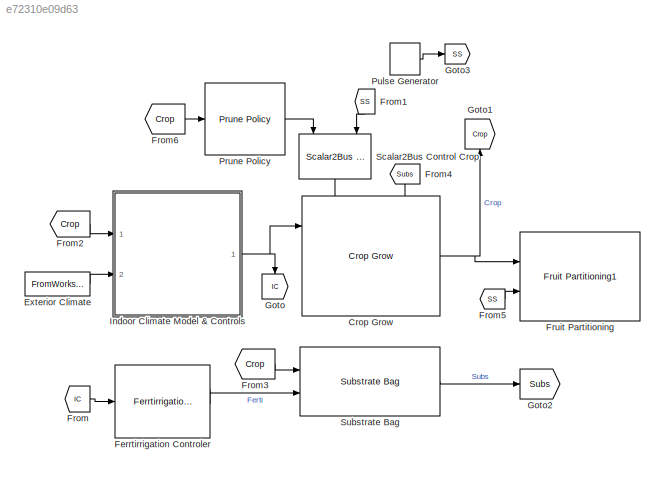
MODEL slx_e72310e09d63
KIND model
CONFIG AbsTol = auto
CONFIG EnableMultiTasking = off
CONFIG FixedStep = auto
CONFIG MaxStep = auto
CONFIG MinStep = auto
CONFIG RelTol = 1e-3
CONFIG SampleTimeConstraint = Unconstrained
CONFIG SolverName = VariableStepAuto
CONFIG StartTime = 0.0
CONFIG StopTime = 100
BLOCK [Reference] Crop Grow  REF=HORTISIM/Horticulture/Models/Crop Grow
  Ports = [3, 1]
  SourceBlock = HORTISIM/Horticulture/Models/Crop Grow
  SourceProductName = Horti Simulator
BLOCK [FromWorkspace] Exterior Climate
  VariableName = climate
BLOCK [Reference] Ferrtirrigation Controler  REF=HORTISIM/Horticulture/Controls/Ferrtirrigation
 Controler
  Ports = [1, 2]
  SourceBlock = HORTISIM/Horticulture/Controls/Ferrtirrigation\n Controler
  SourceProductName = Horti Simulator
BLOCK [From] From
  GotoTag = IC
BLOCK [From] From1
  GotoTag = SS
  NameLocation = left
BLOCK [From] From2
  GotoTag = Crop
BLOCK [From] From3
  GotoTag = Crop
BLOCK [From] From4
  GotoTag = Subs
  NameLocation = left
BLOCK [From] From5
  GotoTag = SS
BLOCK [From] From6
  GotoTag = Crop
BLOCK [Reference] Fruit Partitioning  REF=HORTISIM/Horticulture/Models/Fruit Partitioning1
  Ports = [2, 1]
  SourceBlock = HORTISIM/Horticulture/Models/Fruit Partitioning1
  SourceProductName = Horti Simulator
BLOCK [Goto] Goto
  GotoTag = IC
  NameLocation = left
BLOCK [Goto] Goto1
  GotoTag = Crop
  NameLocation = right
BLOCK [Goto] Goto2
  GotoTag = Subs
BLOCK [Goto] Goto3
  GotoTag = SS
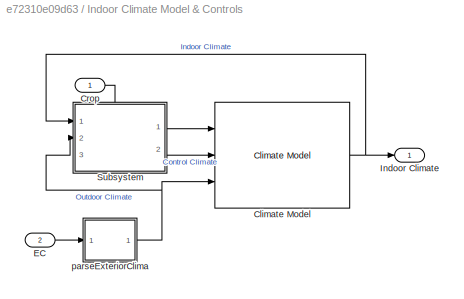
BLOCK [SubSystem] Indoor Climate Model & Controls
  Ports = [2, 1]
  RequestExecContextInheritance = off
BLOCK [Reference] Indoor Climate Model & Controls/Climate Model  REF=HORTISIM/Climate/Models/Climate Model
  Ports = [3, 1]
  SourceBlock = HORTISIM/Climate/Models/Climate Model
  SourceProductName = Horti Simulator
BLOCK [Inport] Indoor Climate Model & Controls/Crop
BLOCK [Inport] Indoor Climate Model & Controls/EC
  Port = 2
BLOCK [Outport] Indoor Climate Model & Controls/Indoor Climate
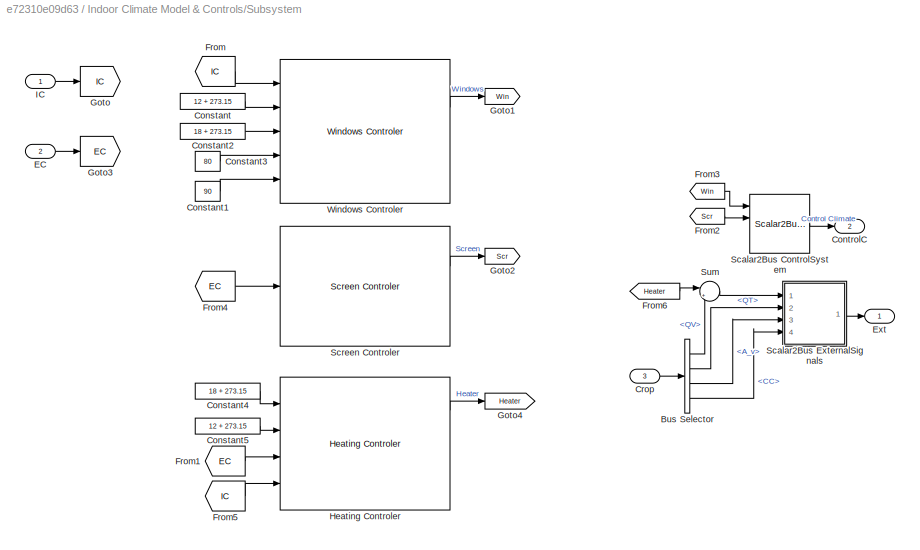
BLOCK [SubSystem] Indoor Climate Model & Controls/Subsystem
  PortSchema = {"entries":[{"content":{"sides":[{"content":{"connectorIds":["In1","In2"]},"type":"ConnectorPlacement.EquallySpacedRectSide","uuid":"05a20284-31f0-4954-ac42-b08c051c723b"},{"content":{"connectorIds":["Out1","Out2"],"side":"RIGHT"},"type":"ConnectorPlacement.EquallySpacedRectSide","uuid":"7e4ab434-6629-473e-82a5-f81f17f0ab6e"},{"content":{"connectorIds":["In3"],"side":"TOP"},"type":"ConnectorPlacem...<+258ch>
  Ports = [3, 2]
  RequestExecContextInheritance = off
BLOCK [BusSelector] Indoor Climate Model & Controls/Subsystem/Bus Selector
  OutputSignals = HeatVars.QV,HeatVars.QT,A_v,CC
  Ports = [1, 4]
BLOCK [Constant] Indoor Climate Model & Controls/Subsystem/Constant
  Value = 12 + 273.15
BLOCK [Constant] Indoor Climate Model & Controls/Subsystem/Constant1
  Value = 90
BLOCK [Constant] Indoor Climate Model & Controls/Subsystem/Constant2
  Value = 18 + 273.15
BLOCK [Constant] Indoor Climate Model & Controls/Subsystem/Constant3
  Value = 80
BLOCK [Constant] Indoor Climate Model & Controls/Subsystem/Constant4
  Value = 18 + 273.15
BLOCK [Constant] Indoor Climate Model & Controls/Subsystem/Constant5
  Value = 12 + 273.15
BLOCK [Outport] Indoor Climate Model & Controls/Subsystem/ControlC
  Port = 2
BLOCK [Inport] Indoor Climate Model & Controls/Subsystem/Crop
  Port = 3
BLOCK [Inport] Indoor Climate Model & Controls/Subsystem/EC
  Port = 2
BLOCK [Outport] Indoor Climate Model & Controls/Subsystem/Ext
BLOCK [From] Indoor Climate Model & Controls/Subsystem/From
  GotoTag = IC
BLOCK [From] Indoor Climate Model & Controls/Subsystem/From1
  GotoTag = EC
BLOCK [From] Indoor Climate Model & Controls/Subsystem/From2
  GotoTag = Scr
BLOCK [From] Indoor Climate Model & Controls/Subsystem/From3
  GotoTag = Win
BLOCK [From] Indoor Climate Model & Controls/Subsystem/From4
  GotoTag = EC
BLOCK [From] Indoor Climate Model & Controls/Subsystem/From5
  GotoTag = IC
BLOCK [From] Indoor Climate Model & Controls/Subsystem/From6
  GotoTag = Heater
BLOCK [Goto] Indoor Climate Model & Controls/Subsystem/Goto
  GotoTag = IC
BLOCK [Goto] Indoor Climate Model & Controls/Subsystem/Goto1
  GotoTag = Win
BLOCK [Goto] Indoor Climate Model & Controls/Subsystem/Goto2
  GotoTag = Scr
BLOCK [Goto] Indoor Climate Model & Controls/Subsystem/Goto3
  GotoTag = EC
BLOCK [Goto] Indoor Climate Model & Controls/Subsystem/Goto4
  GotoTag = Heater
BLOCK [Reference] Indoor Climate Model & Controls/Subsystem/Heating Controler  REF=HORTISIM/Climate/Controls/Heating Controler
  NameLocation = top
  Ports = [4, 3]
  SourceBlock = HORTISIM/Climate/Controls/Heating Controler
  SourceProductName = Horti Simulator
BLOCK [Inport] Indoor Climate Model & Controls/Subsystem/IC
BLOCK [Reference] Indoor Climate Model & Controls/Subsystem/Scalar2Bus ControlSystem  REF=HORTISIM/Other 
Functions/Scalar2Bus 
Control Climate
  Ports = [4, 1]
  SourceBlock = HORTISIM/Other \nFunctions/Scalar2Bus \nControl Climate
  SourceProductName = Horti Simulator
  SourceType = SubSystem
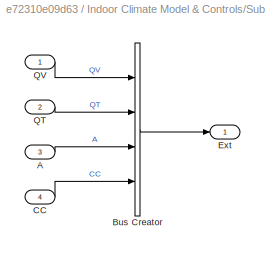
BLOCK [SubSystem] Indoor Climate Model & Controls/Subsystem/Scalar2Bus ExternalSignals
  Ports = [4, 1]
  RequestExecContextInheritance = off
BLOCK [Inport] Indoor Climate Model & Controls/Subsystem/Scalar2Bus ExternalSignals/A
  Port = 3
BLOCK [BusCreator] Indoor Climate Model & Controls/Subsystem/Scalar2Bus ExternalSignals/Bus Creator
  DisplayOption = bar
  InheritFromInputs = on
  Inputs = 4
  Ports = [4, 1]
BLOCK [Inport] Indoor Climate Model & Controls/Subsystem/Scalar2Bus ExternalSignals/CC
  Port = 4
BLOCK [Outport] Indoor Climate Model & Controls/Subsystem/Scalar2Bus ExternalSignals/Ext
BLOCK [Inport] Indoor Climate Model & Controls/Subsystem/Scalar2Bus ExternalSignals/QT
  Port = 2
BLOCK [Inport] Indoor Climate Model & Controls/Subsystem/Scalar2Bus ExternalSignals/QV
BLOCK [Reference] Indoor Climate Model & Controls/Subsystem/Screen Controler  REF=HORTISIM/Climate/Controls/Screen Controler
  NameLocation = top
  Ports = [1, 2]
  SourceBlock = HORTISIM/Climate/Controls/Screen Controler
  SourceProductName = Horti Simulator
BLOCK [Sum] Indoor Climate Model & Controls/Subsystem/Sum
  Inputs = |++
  Ports = [2, 1]
BLOCK [Reference] Indoor Climate Model & Controls/Subsystem/Windows Controler  REF=HORTISIM/Climate/Controls/Windows Controler
  NameLocation = top
  Ports = [5, 2]
  SourceBlock = HORTISIM/Climate/Controls/Windows Controler
  SourceProductName = Horti Simulator
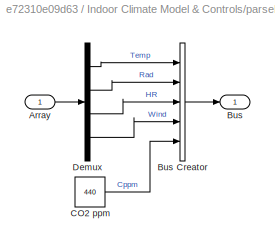
BLOCK [SubSystem] Indoor Climate Model & Controls/parseExteriorClima
  AncestorBlock = HORTISIM/Other \nFunctions/parseExteriorClima
  Ports = [1, 1]
  RequestExecContextInheritance = off
BLOCK [Inport] Indoor Climate Model & Controls/parseExteriorClima/Array
BLOCK [Outport] Indoor Climate Model & Controls/parseExteriorClima/Bus
BLOCK [BusCreator] Indoor Climate Model & Controls/parseExteriorClima/Bus Creator
  DisplayOption = bar
  InheritFromInputs = on
  Inputs = 5
  Ports = [5, 1]
BLOCK [Constant] Indoor Climate Model & Controls/parseExteriorClima/CO2 ppm
  Value = 440
BLOCK [Demux] Indoor Climate Model & Controls/parseExteriorClima/Demux
  Ports = [1, 4]
BLOCK [Reference] Prune Policy  REF=HORTISIM/Horticulture/Controls/Prune
Policy
  Ports = [1, 1]
  SourceBlock = HORTISIM/Horticulture/Controls/Prune\nPolicy
  SourceProductName = Horti Simulator
BLOCK [DiscretePulseGenerator] Pulse Generator
  Period = 100
  Ports = [0, 1]
  PulseType = Time based
  PulseWidth = 50
BLOCK [Reference] Scalar2Bus Control Crop  REF=HORTISIM/Other 
Functions/Scalar2Bus
Control Crop
  NameLocation = left
  Ports = [4, 1]
  SourceBlock = HORTISIM/Other \nFunctions/Scalar2Bus\nControl Crop
  SourceProductName = Horti Simulator
  SourceType = SubSystem
BLOCK [Reference] Substrate Bag  REF=HORTISIM/Horticulture/Models/Substrate Bag
  Ports = [2, 1]
  SourceBlock = HORTISIM/Horticulture/Models/Substrate Bag
  SourceProductName = Horti Simulator
NET Crop Grow:1 -> Fruit Partitioning:1, Goto1:1
LINE Exterior Climate:1 -> Indoor Climate Model & Controls:2
LINE Ferrtirrigation Controler:1 -> Substrate Bag:2
LINE From1:1 -> Scalar2Bus Control Crop:4
LINE From2:1 -> Indoor Climate Model & Controls:1
LINE From3:1 -> Substrate Bag:1
LINE From4:1 -> Crop Grow:3
LINE From5:1 -> Fruit Partitioning:2
LINE From6:1 -> Prune Policy:1
LINE From:1 -> Ferrtirrigation Controler:1
NET Indoor Climate Model & Controls/Climate Model:1 -> Indoor Climate Model & Controls/Indoor Climate:1, Indoor Climate Model & Controls/Subsystem:1
LINE Indoor Climate Model & Controls/Crop:1 -> Indoor Climate Model & Controls/Subsystem:3
LINE Indoor Climate Model & Controls/EC:1 -> Indoor Climate Model & Controls/parseExteriorClima:1
LINE Indoor Climate Model & Controls/Subsystem/Bus Selector:1 -> Indoor Climate Model & Controls/Subsystem/Sum:2
LINE Indoor Climate Model & Controls/Subsystem/Bus Selector:2 -> Indoor Climate Model & Controls/Subsystem/Scalar2Bus ExternalSignals:2
LINE Indoor Climate Model & Controls/Subsystem/Bus Selector:3 -> Indoor Climate Model & Controls/Subsystem/Scalar2Bus ExternalSignals:3
LINE Indoor Climate Model & Controls/Subsystem/Bus Selector:4 -> Indoor Climate Model & Controls/Subsystem/Scalar2Bus ExternalSignals:4
LINE Indoor Climate Model & Controls/Subsystem/Constant1:1 -> Indoor Climate Model & Controls/Subsystem/Windows Controler:5
LINE Indoor Climate Model & Controls/Subsystem/Constant2:1 -> Indoor Climate Model & Controls/Subsystem/Windows Controler:3
LINE Indoor Climate Model & Controls/Subsystem/Constant3:1 -> Indoor Climate Model & Controls/Subsystem/Windows Controler:4
LINE Indoor Climate Model & Controls/Subsystem/Constant4:1 -> Indoor Climate Model & Controls/Subsystem/Heating Controler:1
LINE Indoor Climate Model & Controls/Subsystem/Constant5:1 -> Indoor Climate Model & Controls/Subsystem/Heating Controler:2
LINE Indoor Climate Model & Controls/Subsystem/Constant:1 -> Indoor Climate Model & Controls/Subsystem/Windows Controler:2
LINE Indoor Climate Model & Controls/Subsystem/Crop:1 -> Indoor Climate Model & Controls/Subsystem/Bus Selector:1
LINE Indoor Climate Model & Controls/Subsystem/EC:1 -> Indoor Climate Model & Controls/Subsystem/Goto3:1
LINE Indoor Climate Model & Controls/Subsystem/From1:1 -> Indoor Climate Model & Controls/Subsystem/Heating Controler:3
LINE Indoor Climate Model & Controls/Subsystem/From2:1 -> Indoor Climate Model & Controls/Subsystem/Scalar2Bus ControlSystem:2
LINE Indoor Climate Model & Controls/Subsystem/From3:1 -> Indoor Climate Model & Controls/Subsystem/Scalar2Bus ControlSystem:1
LINE Indoor Climate Model & Controls/Subsystem/From4:1 -> Indoor Climate Model & Controls/Subsystem/Screen Controler:1
LINE Indoor Climate Model & Controls/Subsystem/From5:1 -> Indoor Climate Model & Controls/Subsystem/Heating Controler:4
LINE Indoor Climate Model & Controls/Subsystem/From6:1 -> Indoor Climate Model & Controls/Subsystem/Sum:1
LINE Indoor Climate Model & Controls/Subsystem/From:1 -> Indoor Climate Model & Controls/Subsystem/Windows Controler:1
LINE Indoor Climate Model & Controls/Subsystem/Heating Controler:1 -> Indoor Climate Model & Controls/Subsystem/Goto4:1
LINE Indoor Climate Model & Controls/Subsystem/IC:1 -> Indoor Climate Model & Controls/Subsystem/Goto:1
LINE Indoor Climate Model & Controls/Subsystem/Scalar2Bus ControlSystem:1 -> Indoor Climate Model & Controls/Subsystem/ControlC:1
LINE Indoor Climate Model & Controls/Subsystem/Scalar2Bus ExternalSignals/A:1 -> Indoor Climate Model & Controls/Subsystem/Scalar2Bus ExternalSignals/Bus Creator:3
LINE Indoor Climate Model & Controls/Subsystem/Scalar2Bus ExternalSignals/Bus Creator:1 -> Indoor Climate Model & Controls/Subsystem/Scalar2Bus ExternalSignals/Ext:1
LINE Indoor Climate Model & Controls/Subsystem/Scalar2Bus ExternalSignals/CC:1 -> Indoor Climate Model & Controls/Subsystem/Scalar2Bus ExternalSignals/Bus Creator:4
LINE Indoor Climate Model & Controls/Subsystem/Scalar2Bus ExternalSignals/QT:1 -> Indoor Climate Model & Controls/Subsystem/Scalar2Bus ExternalSignals/Bus Creator:2
LINE Indoor Climate Model & Controls/Subsystem/Scalar2Bus ExternalSignals/QV:1 -> Indoor Climate Model & Controls/Subsystem/Scalar2Bus ExternalSignals/Bus Creator:1
LINE Indoor Climate Model & Controls/Subsystem/Scalar2Bus ExternalSignals:1 -> Indoor Climate Model & Controls/Subsystem/Ext:1
LINE Indoor Climate Model & Controls/Subsystem/Screen Controler:1 -> Indoor Climate Model & Controls/Subsystem/Goto2:1
LINE Indoor Climate Model & Controls/Subsystem/Sum:1 -> Indoor Climate Model & Controls/Subsystem/Scalar2Bus ExternalSignals:1
LINE Indoor Climate Model & Controls/Subsystem/Windows Controler:1 -> Indoor Climate Model & Controls/Subsystem/Goto1:1
LINE Indoor Climate Model & Controls/Subsystem:1 -> Indoor Climate Model & Controls/Climate Model:1
LINE Indoor Climate Model & Controls/Subsystem:2 -> Indoor Climate Model & Controls/Climate Model:2
NET Indoor Climate Model & Controls/parseExteriorClima:1 -> Indoor Climate Model & Controls/Climate Model:3, Indoor Climate Model & Controls/Subsystem:2
NET Indoor Climate Model & Controls:1 -> Crop Grow:1, Goto:1
LINE Prune Policy:1 -> Scalar2Bus Control Crop:1
LINE Pulse Generator:1 -> Goto3:1
LINE Scalar2Bus Control Crop:1 -> Crop Grow:2
LINE Substrate Bag:1 -> Goto2:1
note: NET lines group one-source signal fan-out (src -> all destinations, sorted); 1:1 wires keep LINE
